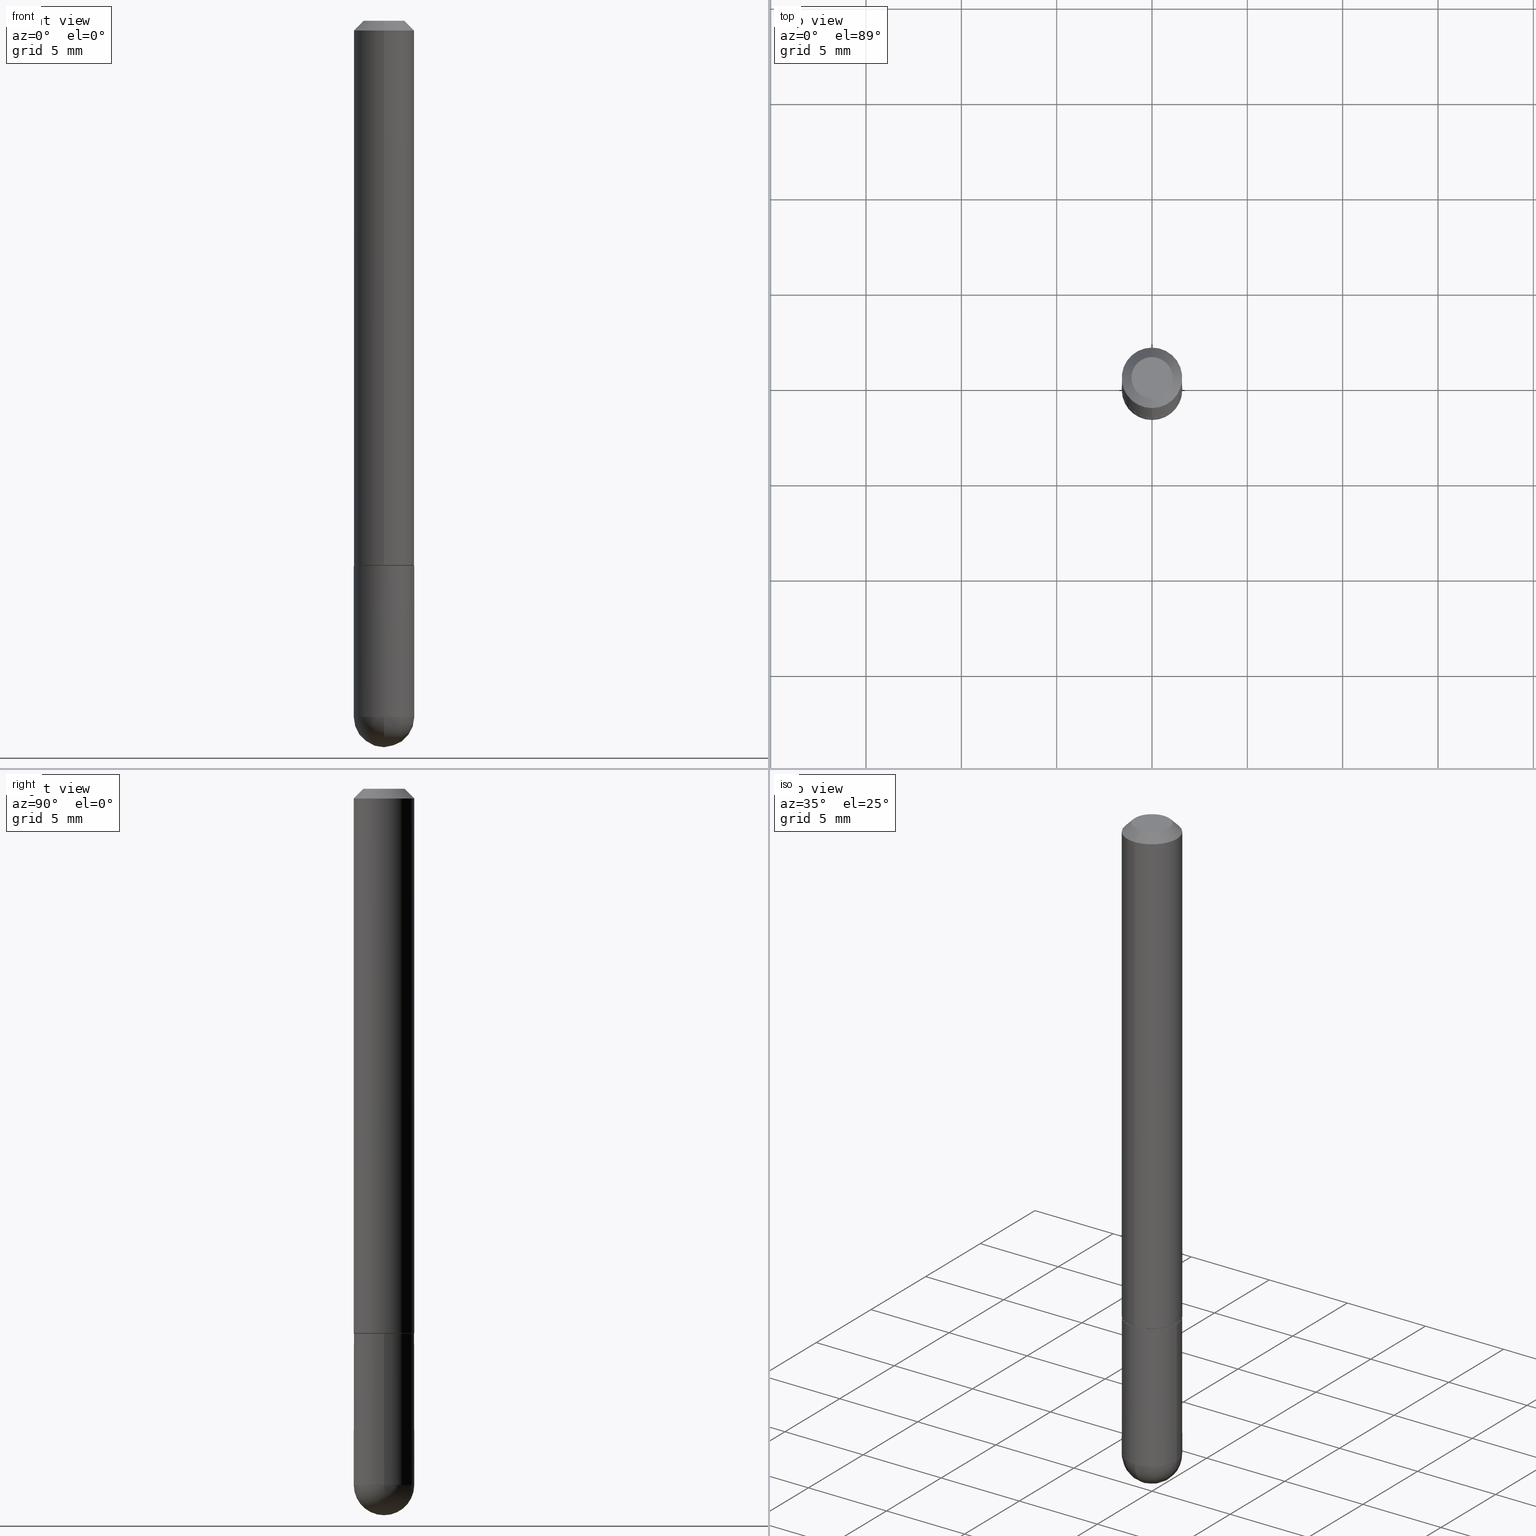
[diagram: canonical four-view strip — front | top / right | iso, engineering-drawing reading convention]
A machine part, canonical four-view strip (front | top / right | iso — engineering-drawing reading convention). The complete STEP part file that produces these views, byte-faithful:
ISO-10303-21;
HEADER;
FILE_DESCRIPTION (( 'STEP AP203' ),
    '1' );
FILE_NAME ('30599.STEP',
    '2024-02-21T16:42:09',
    ( '' ),
    ( '' ),
    'SwSTEP 2.0',
    'SolidWorks 2023',
    '' );
FILE_SCHEMA (( 'CONFIG_CONTROL_DESIGN' ));
ENDSEC;

DATA;
#1 = CALENDAR_DATE ( 2024, 21, 2 ) ;
#2 = CARTESIAN_POINT ( 'NONE',  ( 2.726346520416373484E-29, -3.956446415733188311E-15, -1.124000000000000110 ) ) ;
#3 = SECURITY_CLASSIFICATION_LEVEL ( 'unclassified' ) ;
#4 = DIRECTION ( 'NONE',  ( -2.425575196099976193E-29, 3.519970120759064308E-15, 1.000000000000000000 ) ) ;
#5 = DIRECTION ( 'NONE',  ( 1.000000000000000000, -6.982962677686267499E-15, 4.876176775795936353E-29 ) ) ;
#6 = VECTOR ( 'NONE', #10, 39.37007874015748143 ) ;
#7 = ADVANCED_FACE ( 'NONE', ( #26 ), #269, .T. ) ;
#8 = DIRECTION ( 'NONE',  ( 2.425575196099975633E-29, -3.519970120759064703E-15, -1.000000000000000000 ) ) ;
#9 = DIRECTION ( 'NONE',  ( -4.937700262165222518E-15, -0.7071067811866417196, 0.7071067811864533148 ) ) ;
#10 = DIRECTION ( 'NONE',  ( -4.851104656540961908E-15, -0.7071067811865496822, -0.7071067811865453523 ) ) ;
#11 = CC_DESIGN_PERSON_AND_ORGANIZATION_ASSIGNMENT ( #207, #334, ( #70 ) ) ;
#12 = FACE_OUTER_BOUND ( 'NONE', #335, .T. ) ;
#13 = ORIENTED_EDGE ( 'NONE', *, *, #406, .F. ) ;
#14 = CARTESIAN_POINT ( 'NONE',  ( 3.184241630977247611E-29, -5.493186792727071849E-15, -1.437500000000000000 ) ) ;
#15 = ORIENTED_EDGE ( 'NONE', *, *, #84, .T. ) ;
#16 = APPROVAL ( #281, 'UNSPECIFIED' ) ;
#17 = AXIS2_PLACEMENT_3D ( 'NONE', #310, #4, #128 ) ;
#18 = CONICAL_SURFACE ( 'NONE', #189, 0.06249999999999995143, 0.7853981633974479459 ) ;
#19 = MECHANICAL_CONTEXT ( 'NONE', #46, 'mechanical' ) ;
#20 = ORIENTED_EDGE ( 'NONE', *, *, #406, .T. ) ;
#21 = ORIENTED_EDGE ( 'NONE', *, *, #182, .F. ) ;
#22 = CARTESIAN_POINT ( 'NONE',  ( 0.000000000000000000, 0.000000000000000000, 0.000000000000000000 ) ) ;
#23 = ORIENTED_EDGE ( 'NONE', *, *, #412, .T. ) ;
#24 = CONICAL_SURFACE ( 'NONE', #257, 0.06150000000000004768, 0.7853981633975849475 ) ;
#25 = PRODUCT_DEFINITION_FORMATION_WITH_SPECIFIED_SOURCE ( 'ANY', '', #70, .NOT_KNOWN. ) ;
#26 = FACE_OUTER_BOUND ( 'NONE', #43, .T. ) ;
#27 = DIRECTION ( 'NONE',  ( -2.425575196099976193E-29, 3.519970120759064308E-15, 1.000000000000000000 ) ) ;
#28 = ORIENTED_EDGE ( 'NONE', *, *, #65, .F. ) ;
#29 = ADVANCED_FACE ( 'NONE', ( #64 ), #407, .F. ) ;
#30 = PERSON_AND_ORGANIZATION ( #396, #167 ) ;
#31 = AXIS2_PLACEMENT_3D ( 'NONE', #47, #328, #49 ) ;
#32 = ORIENTED_EDGE ( 'NONE', *, *, #336, .F. ) ;
#33 = CARTESIAN_POINT ( 'NONE',  ( 4.440892098500628134E-16, 0.06250000000000002776, -2.199981325474416425E-16 ) ) ;
#34 = CARTESIAN_POINT ( 'NONE',  ( 0.000000000000000000, 0.000000000000000000, 0.000000000000000000 ) ) ;
#35 = PLANE ( 'NONE',  #180 ) ;
#36 = CARTESIAN_POINT ( 'NONE',  ( 3.184241630977247611E-29, -5.493186792727071849E-15, -1.437500000000000000 ) ) ;
#37 = CARTESIAN_POINT ( 'NONE',  ( 4.364351673554256397E-16, 0.06249999999999480971, -1.437500000000000444 ) ) ;
#38 = CC_DESIGN_PERSON_AND_ORGANIZATION_ASSIGNMENT ( #279, #120, ( #25 ) ) ;
#39 = FACE_OUTER_BOUND ( 'NONE', #403, .T. ) ;
#40 =( NAMED_UNIT ( * ) PLANE_ANGLE_UNIT ( ) SI_UNIT ( $, .RADIAN. ) );
#41 = EDGE_CURVE ( 'NONE', #215, #213, #54, .T. ) ;
#42 = VERTEX_POINT ( 'NONE', #342 ) ;
#43 = EDGE_LOOP ( 'NONE', ( #143, #397, #148, #238 ) ) ;
#44 = VECTOR ( 'NONE', #314, 39.37007874015748143 ) ;
#45 = AXIS2_PLACEMENT_3D ( 'NONE', #74, #361, #210 ) ;
#46 = APPLICATION_CONTEXT ( 'configuration controlled 3d designs of mechanical parts and assemblies' ) ;
#47 = CARTESIAN_POINT ( 'NONE',  ( 3.515361408891134418E-29, -5.019004424587023131E-15, -1.437500000000000222 ) ) ;
#48 = EDGE_LOOP ( 'NONE', ( #109, #303, #209, #399 ) ) ;
#49 = DIRECTION ( 'NONE',  ( 1.000000000000000000, -6.982962677686268288E-15, 0.000000000000000000 ) ) ;
#50 = ORIENTED_EDGE ( 'NONE', *, *, #384, .F. ) ;
#51 = APPROVAL ( #127, 'UNSPECIFIED' ) ;
#52 = EDGE_LOOP ( 'NONE', ( #302, #203, #96, #308 ) ) ;
#53 = MANIFOLD_SOLID_BREP ( 'Body-Move/Copy2[1]', #322 ) ;
#54 = CIRCLE ( 'NONE', #250, 0.06249999999999995143 ) ;
#55 = PERSON_AND_ORGANIZATION ( #396, #167 ) ;
#56 = ORIENTED_EDGE ( 'NONE', *, *, #58, .T. ) ;
#57 = PERSON_AND_ORGANIZATION_ROLE ( 'creator' ) ;
#58 = EDGE_CURVE ( 'NONE', #42, #305, #327, .T. ) ;
#59 = VERTEX_POINT ( 'NONE', #158 ) ;
#60 = FACE_OUTER_BOUND ( 'NONE', #366, .T. ) ;
#61 = APPROVAL_ROLE ( '' ) ;
#62 = AXIS2_PLACEMENT_3D ( 'NONE', #63, #372, #129 ) ;
#63 = CARTESIAN_POINT ( 'NONE',  ( 4.851150392199968571E-31, -7.039940241518151938E-17, -0.02000000000000006981 ) ) ;
#64 = FACE_OUTER_BOUND ( 'NONE', #186, .T. ) ;
#65 = EDGE_CURVE ( 'NONE', #313, #170, #142, .T. ) ;
#66 = CARTESIAN_POINT ( 'NONE',  ( 0.000000000000000000, 0.000000000000000000, 0.000000000000000000 ) ) ;
#67 = AXIS2_PLACEMENT_3D ( 'NONE', #191, #318, #152 ) ;
#68 = CARTESIAN_POINT ( 'NONE',  ( -5.206167225297751626E-45, 7.555137068596522617E-31, 2.146363977364470844E-16 ) ) ;
#69 = VECTOR ( 'NONE', #162, 39.37007874015748143 ) ;
#70 = PRODUCT ( '30599', '30599', '', ( #19 ) ) ;
#71 = DIRECTION ( 'NONE',  ( 4.937700262164545676E-15, 0.7071067811865447972, -0.7071067811865502373 ) ) ;
#72 = EDGE_CURVE ( 'NONE', #173, #338, #195, .T. ) ;
#73 = DIRECTION ( 'NONE',  ( 6.982962677686266711E-15, 1.000000000000000000, 0.000000000000000000 ) ) ;
#74 = CARTESIAN_POINT ( 'NONE',  ( 2.728772095612472832E-29, -3.959966385853946854E-15, -1.124999999999999778 ) ) ;
#75 = AXIS2_PLACEMENT_3D ( 'NONE', #88, #98, #383 ) ;
#76 = AXIS2_PLACEMENT_3D ( 'NONE', #395, #145, #147 ) ;
#77 = CARTESIAN_POINT ( 'NONE',  ( 0.000000000000000000, 0.000000000000000000, 0.000000000000000000 ) ) ;
#78 = ORIENTED_EDGE ( 'NONE', *, *, #268, .T. ) ;
#79 = CARTESIAN_POINT ( 'NONE',  ( 3.184241630977247611E-29, -5.493186792727071849E-15, -1.437500000000000000 ) ) ;
#80 = EDGE_LOOP ( 'NONE', ( #112, #15, #23, #278 ) ) ;
#81 = APPLICATION_PROTOCOL_DEFINITION ( 'international standard', 'config_control_design', 1994, #46 ) ;
#82 = ORIENTED_EDGE ( 'NONE', *, *, #384, .T. ) ;
#83 = DIRECTION ( 'NONE',  ( -7.105427357601001859E-15, -1.000000000000000000, 0.000000000000000000 ) ) ;
#84 = EDGE_CURVE ( 'NONE', #244, #240, #223, .T. ) ;
#85 = PERSON_AND_ORGANIZATION_ROLE ( 'classification_officer' ) ;
#86 = ORIENTED_EDGE ( 'NONE', *, *, #205, .F. ) ;
#87 = DATE_AND_TIME ( #373, #401 ) ;
#88 = CARTESIAN_POINT ( 'NONE',  ( 2.728772095612472832E-29, -3.959966385853946854E-15, -1.124999999999999778 ) ) ;
#89 = VECTOR ( 'NONE', #71, 39.37007874015748143 ) ;
#90 = EDGE_CURVE ( 'NONE', #244, #173, #121, .T. ) ;
#91 = DATE_TIME_ROLE ( 'creation_date' ) ;
#92 = FACE_OUTER_BOUND ( 'NONE', #52, .T. ) ;
#93 = DIMENSIONAL_EXPONENTS ( 1.000000000000000000, 0.000000000000000000, 0.000000000000000000, 0.000000000000000000, 0.000000000000000000, 0.000000000000000000, 0.000000000000000000 ) ;
#94 = APPROVAL_DATE_TIME ( #346, #349 ) ;
#95 = CARTESIAN_POINT ( 'NONE',  ( 2.728772095612472832E-29, -3.959966385853946854E-15, -1.124999999999999778 ) ) ;
#96 = ORIENTED_EDGE ( 'NONE', *, *, #41, .F. ) ;
#97 = AXIS2_PLACEMENT_3D ( 'NONE', #14, #115, #83 ) ;
#98 = DIRECTION ( 'NONE',  ( -2.425575196099975633E-29, 3.519970120759064703E-15, 1.000000000000000000 ) ) ;
#99 = CYLINDRICAL_SURFACE ( 'NONE', #208, 0.06249999999999997918 ) ;
#100 = DESIGN_CONTEXT ( 'detailed design', #358, 'design' ) ;
#101 = CARTESIAN_POINT ( 'NONE',  ( 2.728772095612472832E-29, -3.959966385853946854E-15, -1.124999999999999778 ) ) ;
#102 = EDGE_CURVE ( 'NONE', #139, #215, #135, .T. ) ;
#103 = AXIS2_PLACEMENT_3D ( 'NONE', #326, #164, #298 ) ;
#104 = FACE_OUTER_BOUND ( 'NONE', #176, .T. ) ;
#105 = APPROVAL_PERSON_ORGANIZATION ( #153, #51, #126 ) ;
#106 = CARTESIAN_POINT ( 'NONE',  ( -4.294522046776783901E-16, -0.06150000000000400979, -1.124999999999999556 ) ) ;
#107 = DIRECTION ( 'NONE',  ( -2.425575196099976193E-29, 3.519970120759064308E-15, 1.000000000000000000 ) ) ;
#108 = CARTESIAN_POINT ( 'NONE',  ( 4.851150392199968571E-31, -7.039940241518151938E-17, -0.02000000000000006981 ) ) ;
#109 = ORIENTED_EDGE ( 'NONE', *, *, #336, .T. ) ;
#110 = VECTOR ( 'NONE', #9, 39.37007874015748143 ) ;
#111 = CC_DESIGN_DATE_AND_TIME_ASSIGNMENT ( #184, #248, ( #392 ) ) ;
#112 = ORIENTED_EDGE ( 'NONE', *, *, #90, .F. ) ;
#113 = DIRECTION ( 'NONE',  ( -2.425575196099976193E-29, 3.519970120759064308E-15, 1.000000000000000000 ) ) ;
#114 = ORIENTED_EDGE ( 'NONE', *, *, #65, .T. ) ;
#115 = DIRECTION ( 'NONE',  ( -1.000000000000000000, 7.105427357601001070E-15, -4.926315508542082329E-29 ) ) ;
#116 = CC_DESIGN_PERSON_AND_ORGANIZATION_ASSIGNMENT ( #212, #252, ( #25 ) ) ;
#117 = VERTEX_POINT ( 'NONE', #249 ) ;
#118 = AXIS2_PLACEMENT_3D ( 'NONE', #79, #304, #275 ) ;
#119 = VERTEX_POINT ( 'NONE', #374 ) ;
#120 = PERSON_AND_ORGANIZATION_ROLE ( 'design_supplier' ) ;
#121 = LINE ( 'NONE', #33, #44 ) ;
#122 = EDGE_CURVE ( 'NONE', #117, #244, #411, .T. ) ;
#123 = APPROVAL_DATE_TIME ( #87, #16 ) ;
#124 = DIRECTION ( 'NONE',  ( -6.982962677686265922E-15, -1.000000000000000000, 3.519970120759063914E-15 ) ) ;
#125 = CIRCLE ( 'NONE', #97, 0.06250000000000018041 ) ;
#126 = APPROVAL_ROLE ( '' ) ;
#127 = APPROVAL_STATUS ( 'not_yet_approved' ) ;
#128 = DIRECTION ( 'NONE',  ( -6.982962677686265922E-15, -1.000000000000000000, 3.551402391763545142E-15 ) ) ;
#129 = DIRECTION ( 'NONE',  ( -6.982962677686265922E-15, -1.000000000000000000, 3.551402391763545142E-15 ) ) ;
#130 = APPROVAL_PERSON_ORGANIZATION ( #55, #349, #289 ) ;
#131 = DIRECTION ( 'NONE',  ( -6.982962677686265922E-15, -1.000000000000000000, 4.442029257990668187E-15 ) ) ;
#132 = FACE_OUTER_BOUND ( 'NONE', #80, .T. ) ;
#133 = ADVANCED_FACE ( 'NONE', ( #92 ), #376, .T. ) ;
#134 = DIRECTION ( 'NONE',  ( -2.445468806185136597E-29, 3.491481338843145583E-15, 1.000000000000000000 ) ) ;
#135 = CIRCLE ( 'NONE', #188, 0.06249999999999995143 ) ;
#136 = DIRECTION ( 'NONE',  ( -6.982962677686265922E-15, -1.000000000000000000, 3.519970120759063914E-15 ) ) ;
#137 = PRODUCT_DEFINITION_SHAPE ( 'NONE', 'NONE',  #144 ) ;
#138 = DIRECTION ( 'NONE',  ( -2.445468806185136597E-29, 3.491481338843145583E-15, 1.000000000000000000 ) ) ;
#139 = VERTEX_POINT ( 'NONE', #345 ) ;
#140 = CARTESIAN_POINT ( 'NONE',  ( -4.287811248607198352E-16, -0.06250000000000001388, -0.01999999999999984776 ) ) ;
#141 = ORIENTED_EDGE ( 'NONE', *, *, #151, .T. ) ;
#142 = CIRCLE ( 'NONE', #400, 0.06250000000000001388 ) ;
#143 = ORIENTED_EDGE ( 'NONE', *, *, #122, .F. ) ;
#144 = PRODUCT_DEFINITION ( 'UNKNOWN', '', #25, #100 ) ;
#145 = DIRECTION ( 'NONE',  ( -2.425575196099976193E-29, 3.519970120759064308E-15, 1.000000000000000000 ) ) ;
#146 = ORIENTED_EDGE ( 'NONE', *, *, #193, .T. ) ;
#147 = DIRECTION ( 'NONE',  ( -6.982962677686265133E-15, -1.000000000000000000, 4.370956789862812472E-15 ) ) ;
#148 = ORIENTED_EDGE ( 'NONE', *, *, #205, .T. ) ;
#149 = CIRCLE ( 'NONE', #156, 0.06250000000000018041 ) ;
#150 = VECTOR ( 'NONE', #169, 39.37007874015748143 ) ;
#151 = EDGE_CURVE ( 'NONE', #338, #173, #172, .T. ) ;
#152 = DIRECTION ( 'NONE',  ( -1.000000000000000000, 6.982962677686265922E-15, -4.876176775795935793E-29 ) ) ;
#153 = PERSON_AND_ORGANIZATION ( #396, #167 ) ;
#154 = CARTESIAN_POINT ( 'NONE',  ( 2.751152406958278111E-29, -3.927916506198538435E-15, -1.124999999999999778 ) ) ;
#155 = DIRECTION ( 'NONE',  ( -2.445468806185136597E-29, 3.491481338843145583E-15, 1.000000000000000000 ) ) ;
#156 = AXIS2_PLACEMENT_3D ( 'NONE', #36, #192, #73 ) ;
#157 = APPROVAL_STATUS ( 'not_yet_approved' ) ;
#158 = CARTESIAN_POINT ( 'NONE',  ( 3.339755826017505008E-29, -5.707577355157432999E-15, -1.500000000000000222 ) ) ;
#159 = ORIENTED_EDGE ( 'NONE', *, *, #122, .T. ) ;
#160 = FACE_OUTER_BOUND ( 'NONE', #379, .T. ) ;
#161 = VECTOR ( 'NONE', #232, 39.37007874015748143 ) ;
#162 = DIRECTION ( 'NONE',  ( -2.445468806185136877E-29, 3.491481338843145188E-15, 1.000000000000000000 ) ) ;
#163 = ADVANCED_FACE ( 'NONE', ( #60 ), #256, .F. ) ;
#164 = DIRECTION ( 'NONE',  ( 2.425575196099976193E-29, -3.519970120759064308E-15, -1.000000000000000000 ) ) ;
#165 = LINE ( 'NONE', #301, #6 ) ;
#166 = DIRECTION ( 'NONE',  ( -2.445468806185136597E-29, 3.491481338843145583E-15, 1.000000000000000000 ) ) ;
#167 = ORGANIZATION ( 'UNSPECIFIED', 'UNSPECIFIED', '' ) ;
#168 = ADVANCED_FACE ( 'NONE', ( #132 ), #323, .T. ) ;
#169 = DIRECTION ( 'NONE',  ( -2.425575196099975913E-29, 3.519970120759064703E-15, 1.000000000000000000 ) ) ;
#170 = VERTEX_POINT ( 'NONE', #231 ) ;
#171 = FACE_OUTER_BOUND ( 'NONE', #48, .T. ) ;
#172 = CIRCLE ( 'NONE', #62, 0.06249999999999995143 ) ;
#173 = VERTEX_POINT ( 'NONE', #194 ) ;
#174 = CIRCLE ( 'NONE', #76, 0.06250000000000012490 ) ;
#175 = EDGE_CURVE ( 'NONE', #59, #213, #149, .T. ) ;
#176 = EDGE_LOOP ( 'NONE', ( #146, #56 ) ) ;
#177 = DIRECTION ( 'NONE',  ( 2.425575196099976193E-29, -3.519970120759064308E-15, -1.000000000000000000 ) ) ;
#178 = ORIENTED_EDGE ( 'NONE', *, *, #58, .F. ) ;
#179 = ORIENTED_EDGE ( 'NONE', *, *, #193, .F. ) ;
#180 = AXIS2_PLACEMENT_3D ( 'NONE', #295, #8, #262 ) ;
#181 = COORDINATED_UNIVERSAL_TIME_OFFSET ( 5, 0, .BEHIND. ) ;
#182 = EDGE_CURVE ( 'NONE', #42, #338, #165, .T. ) ;
#183 = DIRECTION ( 'NONE',  ( -2.445468806185136597E-29, 3.491481338843145583E-15, 1.000000000000000000 ) ) ;
#184 = DATE_AND_TIME ( #287, #286 ) ;
#185 = DIRECTION ( 'NONE',  ( -6.982962677686265922E-15, -1.000000000000000000, 4.442029257990668187E-15 ) ) ;
#186 = EDGE_LOOP ( 'NONE', ( #114, #78 ) ) ;
#187 = CC_DESIGN_DATE_AND_TIME_ASSIGNMENT ( #190, #91, ( #144 ) ) ;
#188 = AXIS2_PLACEMENT_3D ( 'NONE', #380, #155, #285 ) ;
#189 = AXIS2_PLACEMENT_3D ( 'NONE', #108, #177, #273 ) ;
#190 = DATE_AND_TIME ( #408, #229 ) ;
#191 = CARTESIAN_POINT ( 'NONE',  ( 4.364351673554192795E-16, 0.06249999999999608646, -1.125000000000000222 ) ) ;
#192 = DIRECTION ( 'NONE',  ( 1.000000000000000000, -6.982962677686265922E-15, 4.883557194083112340E-29 ) ) ;
#193 = EDGE_CURVE ( 'NONE', #305, #42, #293, .T. ) ;
#194 = CARTESIAN_POINT ( 'NONE',  ( 4.364351673553917187E-16, 0.06249999999999988204, -0.02000000000000029185 ) ) ;
#195 = CIRCLE ( 'NONE', #17, 0.06249999999999995143 ) ;
#196 = CC_DESIGN_SECURITY_CLASSIFICATION ( #392, ( #25 ) ) ;
#197 = CARTESIAN_POINT ( 'NONE',  ( 4.440892098500770129E-16, 0.06249999999999616279, -1.124000000000000332 ) ) ;
#198 = CARTESIAN_POINT ( 'NONE',  ( 0.06250000000000001388, -4.364351673553930105E-15, -1.124999999999999778 ) ) ;
#199 = DIRECTION ( 'NONE',  ( -2.425575196099976193E-29, 3.519970120759064308E-15, 1.000000000000000000 ) ) ;
#200 = CIRCLE ( 'NONE', #309, 0.06249999999999995143 ) ;
#201 = FACE_OUTER_BOUND ( 'NONE', #211, .T. ) ;
#202 = LENGTH_MEASURE_WITH_UNIT ( LENGTH_MEASURE( 0.02539999999999999897 ), #402 );
#203 = ORIENTED_EDGE ( 'NONE', *, *, #175, .T. ) ;
#204 = CARTESIAN_POINT ( 'NONE',  ( 2.728772095612472832E-29, -3.959966385853946854E-15, -1.124999999999999778 ) ) ;
#205 = EDGE_CURVE ( 'NONE', #330, #240, #387, .T. ) ;
#206 = ORIENTED_EDGE ( 'NONE', *, *, #245, .F. ) ;
#207 = PERSON_AND_ORGANIZATION ( #396, #167 ) ;
#208 = AXIS2_PLACEMENT_3D ( 'NONE', #34, #138, #5 ) ;
#209 = ORIENTED_EDGE ( 'NONE', *, *, #151, .F. ) ;
#210 = DIRECTION ( 'NONE',  ( -6.982962677686265922E-15, -1.000000000000000000, 4.442029257990668187E-15 ) ) ;
#211 = EDGE_LOOP ( 'NONE', ( #225, #393, #267, #13 ) ) ;
#212 = PERSON_AND_ORGANIZATION ( #396, #167 ) ;
#213 = VERTEX_POINT ( 'NONE', #37 ) ;
#214 = ADVANCED_FACE ( 'NONE', ( #160 ), #242, .T. ) ;
#215 = VERTEX_POINT ( 'NONE', #292 ) ;
#216 = VECTOR ( 'NONE', #247, 39.37007874015748143 ) ;
#217 =( GEOMETRIC_REPRESENTATION_CONTEXT ( 3 ) GLOBAL_UNCERTAINTY_ASSIGNED_CONTEXT ( ( #299 ) ) GLOBAL_UNIT_ASSIGNED_CONTEXT ( ( #234, #40, #365 ) ) REPRESENTATION_CONTEXT ( 'NONE', 'WORKASPACE' ) );
#218 = SHAPE_DEFINITION_REPRESENTATION ( #137, #230 ) ;
#219 = DIRECTION ( 'NONE',  ( 1.000000000000000000, -6.982962677686268288E-15, 0.000000000000000000 ) ) ;
#220 = DIRECTION ( 'NONE',  ( -1.000000000000000000, 6.982962677686265922E-15, -4.883557194083112340E-29 ) ) ;
#221 = APPLICATION_PROTOCOL_DEFINITION ( 'international standard', 'config_control_design', 1994, #358 ) ;
#222 = CARTESIAN_POINT ( 'NONE',  ( 4.369837824924891688E-16, 0.06149999999999608558, -1.125000000000000222 ) ) ;
#223 = CIRCLE ( 'NONE', #277, 0.06250000000000012490 ) ;
#224 = CC_DESIGN_APPROVAL ( #349, ( #25 ) ) ;
#225 = ORIENTED_EDGE ( 'NONE', *, *, #175, .F. ) ;
#226 = DIRECTION ( 'NONE',  ( 1.000000000000000000, -6.982962677686268288E-15, 0.000000000000000000 ) ) ;
#227 = CARTESIAN_POINT ( 'NONE',  ( -4.364351673553652426E-16, -0.06250000000000406619, -1.123999999999999888 ) ) ;
#228 = AXIS2_PLACEMENT_3D ( 'NONE', #343, #288, #124 ) ;
#229 = LOCAL_TIME ( 11, 42, 9.000000000000000000, #377 ) ;
#230 = ADVANCED_BREP_SHAPE_REPRESENTATION ( '30599', ( #53, #332, #375 ), #217 ) ;
#231 = CARTESIAN_POINT ( 'NONE',  ( -0.06250000000000001388, -4.029371255542718167E-15, -1.124999999999999778 ) ) ;
#232 = DIRECTION ( 'NONE',  ( -2.445468806185136877E-29, 3.491481338843145188E-15, 1.000000000000000000 ) ) ;
#233 = DIRECTION ( 'NONE',  ( -2.425575196099976193E-29, 3.519970120759064308E-15, 1.000000000000000000 ) ) ;
#234 =( CONVERSION_BASED_UNIT ( 'INCH', #202 ) LENGTH_UNIT ( ) NAMED_UNIT ( #93 ) );
#235 = ORIENTED_EDGE ( 'NONE', *, *, #102, .T. ) ;
#236 = EDGE_CURVE ( 'NONE', #215, #313, #325, .T. ) ;
#237 = DIRECTION ( 'NONE',  ( 1.000000000000000000, 0.000000000000000000, 0.000000000000000000 ) ) ;
#238 = ORIENTED_EDGE ( 'NONE', *, *, #84, .F. ) ;
#239 = LINE ( 'NONE', #337, #150 ) ;
#240 = VERTEX_POINT ( 'NONE', #227 ) ;
#241 = SPHERICAL_SURFACE ( 'NONE', #118, 0.06250000000000018041 ) ;
#242 = CONICAL_SURFACE ( 'NONE', #103, 0.06249999999999995143, 0.7853981633974479459 ) ;
#243 = EDGE_LOOP ( 'NONE', ( #21, #179, #331, #350 ) ) ;
#244 = VERTEX_POINT ( 'NONE', #197 ) ;
#245 = EDGE_CURVE ( 'NONE', #119, #170, #357, .T. ) ;
#246 = CALENDAR_DATE ( 2024, 21, 2 ) ;
#247 = DIRECTION ( 'NONE',  ( 5.024295867788748699E-15, 0.7071067811866466046, 0.7071067811864484298 ) ) ;
#248 = DATE_TIME_ROLE ( 'classification_date' ) ;
#249 = CARTESIAN_POINT ( 'NONE',  ( 4.405364961712898701E-16, 0.06149999999999608558, -1.125000000000000222 ) ) ;
#250 = AXIS2_PLACEMENT_3D ( 'NONE', #315, #183, #219 ) ;
#251 = ADVANCED_FACE ( 'NONE', ( #39 ), #320, .T. ) ;
#252 = PERSON_AND_ORGANIZATION_ROLE ( 'creator' ) ;
#253 = ORIENTED_EDGE ( 'NONE', *, *, #268, .F. ) ;
#254 = COORDINATED_UNIVERSAL_TIME_OFFSET ( 5, 0, .BEHIND. ) ;
#255 = DIRECTION ( 'NONE',  ( -6.982962677686265133E-15, -1.000000000000000000, 4.370956789862812472E-15 ) ) ;
#256 = PLANE ( 'NONE',  #75 ) ;
#257 = AXIS2_PLACEMENT_3D ( 'NONE', #101, #107, #131 ) ;
#258 = AXIS2_PLACEMENT_3D ( 'NONE', #22, #363, #367 ) ;
#259 = CARTESIAN_POINT ( 'NONE',  ( 3.515361408891134418E-29, -5.019004424587023131E-15, -1.437500000000000222 ) ) ;
#260 = ADVANCED_FACE ( 'NONE', ( #12 ), #99, .T. ) ;
#261 = DIRECTION ( 'NONE',  ( 1.000000000000000000, -6.982962677686267499E-15, 4.876176775795936353E-29 ) ) ;
#262 = DIRECTION ( 'NONE',  ( 6.982962677686265922E-15, 1.000000000000000000, -3.519970120759064703E-15 ) ) ;
#263 = AXIS2_PLACEMENT_3D ( 'NONE', #66, #166, #261 ) ;
#264 = LOCAL_TIME ( 11, 42, 9.000000000000000000, #254 ) ;
#265 = DIRECTION ( 'NONE',  ( -6.982962677686266711E-15, -1.000000000000000000, 3.519970120759064703E-15 ) ) ;
#266 = DIRECTION ( 'NONE',  ( -2.445468806185136597E-29, 3.491481338843145583E-15, 1.000000000000000000 ) ) ;
#267 = ORIENTED_EDGE ( 'NONE', *, *, #291, .F. ) ;
#268 = EDGE_CURVE ( 'NONE', #170, #313, #300, .T. ) ;
#269 = CONICAL_SURFACE ( 'NONE', #316, 0.06150000000000004768, 0.7853981633975849475 ) ;
#270 = CYLINDRICAL_SURFACE ( 'NONE', #258, 0.06250000000000002776 ) ;
#271 = ORIENTED_EDGE ( 'NONE', *, *, #245, .T. ) ;
#272 = EDGE_LOOP ( 'NONE', ( #82, #159, #32, #86 ) ) ;
#273 = DIRECTION ( 'NONE',  ( 6.982962677686265922E-15, 1.000000000000000000, -3.551402391763545142E-15 ) ) ;
#274 = ORIENTED_EDGE ( 'NONE', *, *, #236, .T. ) ;
#275 = DIRECTION ( 'NONE',  ( 6.982962677686265922E-15, 1.000000000000000000, -4.370956789862807739E-15 ) ) ;
#276 = PRODUCT_RELATED_PRODUCT_CATEGORY ( 'detail', '', ( #70 ) ) ;
#277 = AXIS2_PLACEMENT_3D ( 'NONE', #2, #405, #255 ) ;
#278 = ORIENTED_EDGE ( 'NONE', *, *, #72, .F. ) ;
#279 = PERSON_AND_ORGANIZATION ( #396, #167 ) ;
#280 = DIRECTION ( 'NONE',  ( 1.000000000000000000, -6.982962677686269077E-15, 0.000000000000000000 ) ) ;
#281 = APPROVAL_STATUS ( 'not_yet_approved' ) ;
#282 = DIRECTION ( 'NONE',  ( -2.445468806185136597E-29, 3.491481338843145583E-15, 1.000000000000000000 ) ) ;
#283 = ADVANCED_FACE ( 'NONE', ( #385 ), #24, .T. ) ;
#284 = COORDINATED_UNIVERSAL_TIME_OFFSET ( 5, 0, .BEHIND. ) ;
#285 = DIRECTION ( 'NONE',  ( 1.000000000000000000, -6.982962677686268288E-15, 0.000000000000000000 ) ) ;
#286 = LOCAL_TIME ( 11, 42, 9.000000000000000000, #181 ) ;
#287 = CALENDAR_DATE ( 2024, 21, 2 ) ;
#288 = DIRECTION ( 'NONE',  ( -2.425575196099976193E-29, 3.519970120759064308E-15, 1.000000000000000000 ) ) ;
#289 = APPROVAL_ROLE ( '' ) ;
#290 = CARTESIAN_POINT ( 'NONE',  ( 3.184241630977247611E-29, -5.493186792727071849E-15, -1.437500000000000000 ) ) ;
#291 = EDGE_CURVE ( 'NONE', #119, #139, #200, .T. ) ;
#292 = CARTESIAN_POINT ( 'NONE',  ( 0.06249999999999995143, -4.909895632748172453E-15, -1.437500000000000222 ) ) ;
#293 = CIRCLE ( 'NONE', #381, 0.04249999999999968386 ) ;
#294 = APPROVAL_PERSON_ORGANIZATION ( #344, #16, #61 ) ;
#295 = CARTESIAN_POINT ( 'NONE',  ( 2.967759138016640869E-16, 0.04249999999999968386, -4.228053126403555175E-17 ) ) ;
#296 = CARTESIAN_POINT ( 'NONE',  ( 2.751152406958278111E-29, -3.927916506198538435E-15, -1.124999999999999778 ) ) ;
#297 = CC_DESIGN_PERSON_AND_ORGANIZATION_ASSIGNMENT ( #369, #57, ( #144 ) ) ;
#298 = DIRECTION ( 'NONE',  ( 6.982962677686265922E-15, 1.000000000000000000, -3.551402391763545142E-15 ) ) ;
#299 = UNCERTAINTY_MEASURE_WITH_UNIT (LENGTH_MEASURE( 1.000000000000000082E-05 ), #234, 'distance_accuracy_value', 'NONE');
#300 = CIRCLE ( 'NONE', #391, 0.06250000000000001388 ) ;
#301 = CARTESIAN_POINT ( 'NONE',  ( -4.287811248607198352E-16, -0.06250000000000001388, -0.01999999999999984776 ) ) ;
#302 = ORIENTED_EDGE ( 'NONE', *, *, #341, .F. ) ;
#303 = ORIENTED_EDGE ( 'NONE', *, *, #90, .T. ) ;
#304 = DIRECTION ( 'NONE',  ( -1.000000000000000000, 6.982962677686265922E-15, -4.883557194083112340E-29 ) ) ;
#305 = VERTEX_POINT ( 'NONE', #351 ) ;
#306 = ADVANCED_FACE ( 'NONE', ( #104 ), #35, .F. ) ;
#307 = FACE_OUTER_BOUND ( 'NONE', #243, .T. ) ;
#308 = ORIENTED_EDGE ( 'NONE', *, *, #102, .F. ) ;
#309 = AXIS2_PLACEMENT_3D ( 'NONE', #259, #134, #226 ) ;
#310 = CARTESIAN_POINT ( 'NONE',  ( 4.851150392199968571E-31, -7.039940241518151938E-17, -0.02000000000000006981 ) ) ;
#311 = AXIS2_PLACEMENT_3D ( 'NONE', #204, #113, #389 ) ;
#312 = EDGE_CURVE ( 'NONE', #305, #173, #386, .T. ) ;
#313 = VERTEX_POINT ( 'NONE', #198 ) ;
#314 = DIRECTION ( 'NONE',  ( -2.425575196099975913E-29, 3.519970120759064703E-15, 1.000000000000000000 ) ) ;
#315 = CARTESIAN_POINT ( 'NONE',  ( 3.515361408891134418E-29, -5.019004424587023131E-15, -1.437500000000000222 ) ) ;
#316 = AXIS2_PLACEMENT_3D ( 'NONE', #95, #27, #185 ) ;
#317 = CC_DESIGN_APPROVAL ( #51, ( #392 ) ) ;
#318 = DIRECTION ( 'NONE',  ( 2.438088387897960049E-29, -3.491481338843145188E-15, -1.000000000000000000 ) ) ;
#319 = ADVANCED_FACE ( 'NONE', ( #307 ), #18, .T. ) ;
#320 = CYLINDRICAL_SURFACE ( 'NONE', #263, 0.06249999999999997918 ) ;
#321 = CARTESIAN_POINT ( 'NONE',  ( 0.06249999999999997918, -4.364351673553915708E-16, 3.047610484872459170E-30 ) ) ;
#322 = CLOSED_SHELL ( 'NONE', ( #260, #352, #133, #29, #251 ) ) ;
#323 = CYLINDRICAL_SURFACE ( 'NONE', #348, 0.06250000000000002776 ) ;
#324 = ADVANCED_FACE ( 'NONE', ( #171 ), #270, .T. ) ;
#325 = LINE ( 'NONE', #321, #161 ) ;
#326 = CARTESIAN_POINT ( 'NONE',  ( 4.851150392199968571E-31, -7.039940241518151938E-17, -0.02000000000000006981 ) ) ;
#327 = CIRCLE ( 'NONE', #228, 0.04249999999999968386 ) ;
#328 = DIRECTION ( 'NONE',  ( -2.445468806185136597E-29, 3.491481338843145583E-15, 1.000000000000000000 ) ) ;
#329 = DIRECTION ( 'NONE',  ( 0.000000000000000000, 0.000000000000000000, 1.000000000000000000 ) ) ;
#330 = VERTEX_POINT ( 'NONE', #398 ) ;
#331 = ORIENTED_EDGE ( 'NONE', *, *, #312, .T. ) ;
#332 = MANIFOLD_SOLID_BREP ( 'Body-Move/Copy2[2]', #409 ) ;
#333 = CIRCLE ( 'NONE', #31, 0.06249999999999995143 ) ;
#334 = PERSON_AND_ORGANIZATION_ROLE ( 'design_owner' ) ;
#335 = EDGE_LOOP ( 'NONE', ( #20, #271, #28, #390, #370 ) ) ;
#336 = EDGE_CURVE ( 'NONE', #240, #244, #174, .T. ) ;
#337 = CARTESIAN_POINT ( 'NONE',  ( -4.364351673553918666E-16, -0.06250000000000002776, 2.199981325474416425E-16 ) ) ;
#338 = VERTEX_POINT ( 'NONE', #140 ) ;
#339 = DATE_AND_TIME ( #246, #264 ) ;
#340 = ORIENTED_EDGE ( 'NONE', *, *, #182, .T. ) ;
#341 = EDGE_CURVE ( 'NONE', #59, #139, #125, .T. ) ;
#342 = CARTESIAN_POINT ( 'NONE',  ( -3.601761448830038135E-16, -0.04249999999999968386, 3.642351278687062092E-16 ) ) ;
#343 = CARTESIAN_POINT ( 'NONE',  ( -5.206167225297751626E-45, 7.555137068596522617E-31, 2.146363977364470844E-16 ) ) ;
#344 = PERSON_AND_ORGANIZATION ( #396, #167 ) ;
#345 = CARTESIAN_POINT ( 'NONE',  ( -4.440892098500294840E-16, -0.06250000000000532907, -1.437500000000000000 ) ) ;
#346 = DATE_AND_TIME ( #1, #360 ) ;
#347 = DIRECTION ( 'NONE',  ( 6.982962677686265922E-15, 1.000000000000000000, -4.370956789862807739E-15 ) ) ;
#348 = AXIS2_PLACEMENT_3D ( 'NONE', #353, #233, #265 ) ;
#349 = APPROVAL ( #157, 'UNSPECIFIED' ) ;
#350 = ORIENTED_EDGE ( 'NONE', *, *, #72, .T. ) ;
#351 = CARTESIAN_POINT ( 'NONE',  ( 3.666055405785279275E-16, 0.04249999999999968386, 6.503766760418795964E-17 ) ) ;
#352 = ADVANCED_FACE ( 'NONE', ( #201 ), #241, .T. ) ;
#353 = CARTESIAN_POINT ( 'NONE',  ( 0.000000000000000000, 0.000000000000000000, 0.000000000000000000 ) ) ;
#354 = CIRCLE ( 'NONE', #45, 0.06150000000000004768 ) ;
#355 = CARTESIAN_POINT ( 'NONE',  ( 4.364351673553917187E-16, 0.06249999999999988204, -0.02000000000000029185 ) ) ;
#356 = CARTESIAN_POINT ( 'NONE',  ( -0.06249999999999997918, 4.440892098500624683E-16, -3.074334431409315413E-30 ) ) ;
#357 = LINE ( 'NONE', #356, #69 ) ;
#358 = APPLICATION_CONTEXT ( 'configuration controlled 3d designs of mechanical parts and assemblies' ) ;
#359 = AXIS2_PLACEMENT_3D ( 'NONE', #290, #220, #347 ) ;
#360 = LOCAL_TIME ( 11, 42, 9.000000000000000000, #404 ) ;
#361 = DIRECTION ( 'NONE',  ( -2.425575196099976193E-29, 3.519970120759064308E-15, 1.000000000000000000 ) ) ;
#362 = ORIENTED_EDGE ( 'NONE', *, *, #394, .F. ) ;
#363 = DIRECTION ( 'NONE',  ( -2.425575196099976193E-29, 3.519970120759064308E-15, 1.000000000000000000 ) ) ;
#364 = ORIENTED_EDGE ( 'NONE', *, *, #312, .F. ) ;
#365 =( NAMED_UNIT ( * ) SI_UNIT ( $, .STERADIAN. ) SOLID_ANGLE_UNIT ( ) );
#366 = EDGE_LOOP ( 'NONE', ( #50, #362 ) ) ;
#367 = DIRECTION ( 'NONE',  ( -6.982962677686266711E-15, -1.000000000000000000, 3.519970120759064703E-15 ) ) ;
#368 = ORIENTED_EDGE ( 'NONE', *, *, #291, .T. ) ;
#369 = PERSON_AND_ORGANIZATION ( #396, #167 ) ;
#370 = ORIENTED_EDGE ( 'NONE', *, *, #41, .T. ) ;
#371 = APPROVAL_DATE_TIME ( #339, #51 ) ;
#372 = DIRECTION ( 'NONE',  ( -2.425575196099976193E-29, 3.519970120759064308E-15, 1.000000000000000000 ) ) ;
#373 = CALENDAR_DATE ( 2024, 21, 2 ) ;
#374 = CARTESIAN_POINT ( 'NONE',  ( -0.06249999999999995143, -4.029371255542718167E-15, -1.437500000000000222 ) ) ;
#375 = AXIS2_PLACEMENT_3D ( 'NONE', #77, #329, #237 ) ;
#376 = SPHERICAL_SURFACE ( 'NONE', #359, 0.06250000000000018041 ) ;
#377 = COORDINATED_UNIVERSAL_TIME_OFFSET ( 5, 0, .BEHIND. ) ;
#378 = CC_DESIGN_PERSON_AND_ORGANIZATION_ASSIGNMENT ( #30, #85, ( #392 ) ) ;
#379 = EDGE_LOOP ( 'NONE', ( #178, #340, #141, #364 ) ) ;
#380 = CARTESIAN_POINT ( 'NONE',  ( 3.515361408891134418E-29, -5.019004424587023131E-15, -1.437500000000000222 ) ) ;
#381 = AXIS2_PLACEMENT_3D ( 'NONE', #68, #199, #136 ) ;
#382 = CC_DESIGN_APPROVAL ( #16, ( #144 ) ) ;
#383 = DIRECTION ( 'NONE',  ( -6.982962677686265922E-15, -1.000000000000000000, 3.519970120759064703E-15 ) ) ;
#384 = EDGE_CURVE ( 'NONE', #330, #117, #354, .T. ) ;
#385 = FACE_OUTER_BOUND ( 'NONE', #272, .T. ) ;
#386 = LINE ( 'NONE', #355, #89 ) ;
#387 = LINE ( 'NONE', #106, #110 ) ;
#388 = DIRECTION ( 'NONE',  ( 1.000000000000000000, -6.982962677686269077E-15, 0.000000000000000000 ) ) ;
#389 = DIRECTION ( 'NONE',  ( -6.982962677686265922E-15, -1.000000000000000000, 4.442029257990668187E-15 ) ) ;
#390 = ORIENTED_EDGE ( 'NONE', *, *, #236, .F. ) ;
#391 = AXIS2_PLACEMENT_3D ( 'NONE', #296, #266, #388 ) ;
#392 = SECURITY_CLASSIFICATION ( '', '', #3 ) ;
#393 = ORIENTED_EDGE ( 'NONE', *, *, #341, .T. ) ;
#394 = EDGE_CURVE ( 'NONE', #117, #330, #410, .T. ) ;
#395 = CARTESIAN_POINT ( 'NONE',  ( 2.726346520416373484E-29, -3.956446415733188311E-15, -1.124000000000000110 ) ) ;
#396 = PERSON ( 'UNSPECIFIED', 'UNSPECIFIED', 'UNSPECIFIED', ('UNSPECIFIED'), ('UNSPECIFIED'), ('UNSPECIFIED') ) ;
#397 = ORIENTED_EDGE ( 'NONE', *, *, #394, .T. ) ;
#398 = CARTESIAN_POINT ( 'NONE',  ( -4.294522046776783901E-16, -0.06150000000000400979, -1.124999999999999556 ) ) ;
#399 = ORIENTED_EDGE ( 'NONE', *, *, #412, .F. ) ;
#400 = AXIS2_PLACEMENT_3D ( 'NONE', #154, #282, #280 ) ;
#401 = LOCAL_TIME ( 11, 42, 9.000000000000000000, #284 ) ;
#402 =( LENGTH_UNIT ( ) NAMED_UNIT ( * ) SI_UNIT ( $, .METRE. ) );
#403 = EDGE_LOOP ( 'NONE', ( #206, #368, #235, #274, #253 ) ) ;
#404 = COORDINATED_UNIVERSAL_TIME_OFFSET ( 5, 0, .BEHIND. ) ;
#405 = DIRECTION ( 'NONE',  ( -2.425575196099976193E-29, 3.519970120759064308E-15, 1.000000000000000000 ) ) ;
#406 = EDGE_CURVE ( 'NONE', #213, #119, #333, .T. ) ;
#407 = PLANE ( 'NONE',  #67 ) ;
#408 = CALENDAR_DATE ( 2024, 21, 2 ) ;
#409 = CLOSED_SHELL ( 'NONE', ( #283, #324, #214, #319, #168, #7, #163, #306 ) ) ;
#410 = CIRCLE ( 'NONE', #311, 0.06150000000000004768 ) ;
#411 = LINE ( 'NONE', #222, #216 ) ;
#412 = EDGE_CURVE ( 'NONE', #240, #338, #239, .T. ) ;
ENDSEC;
END-ISO-10303-21;
